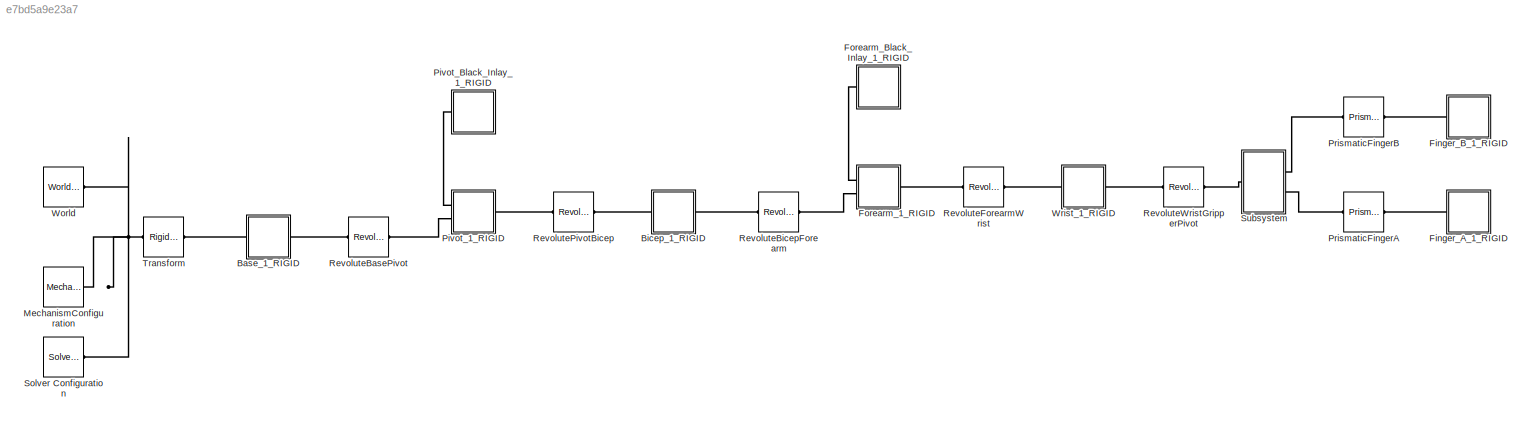
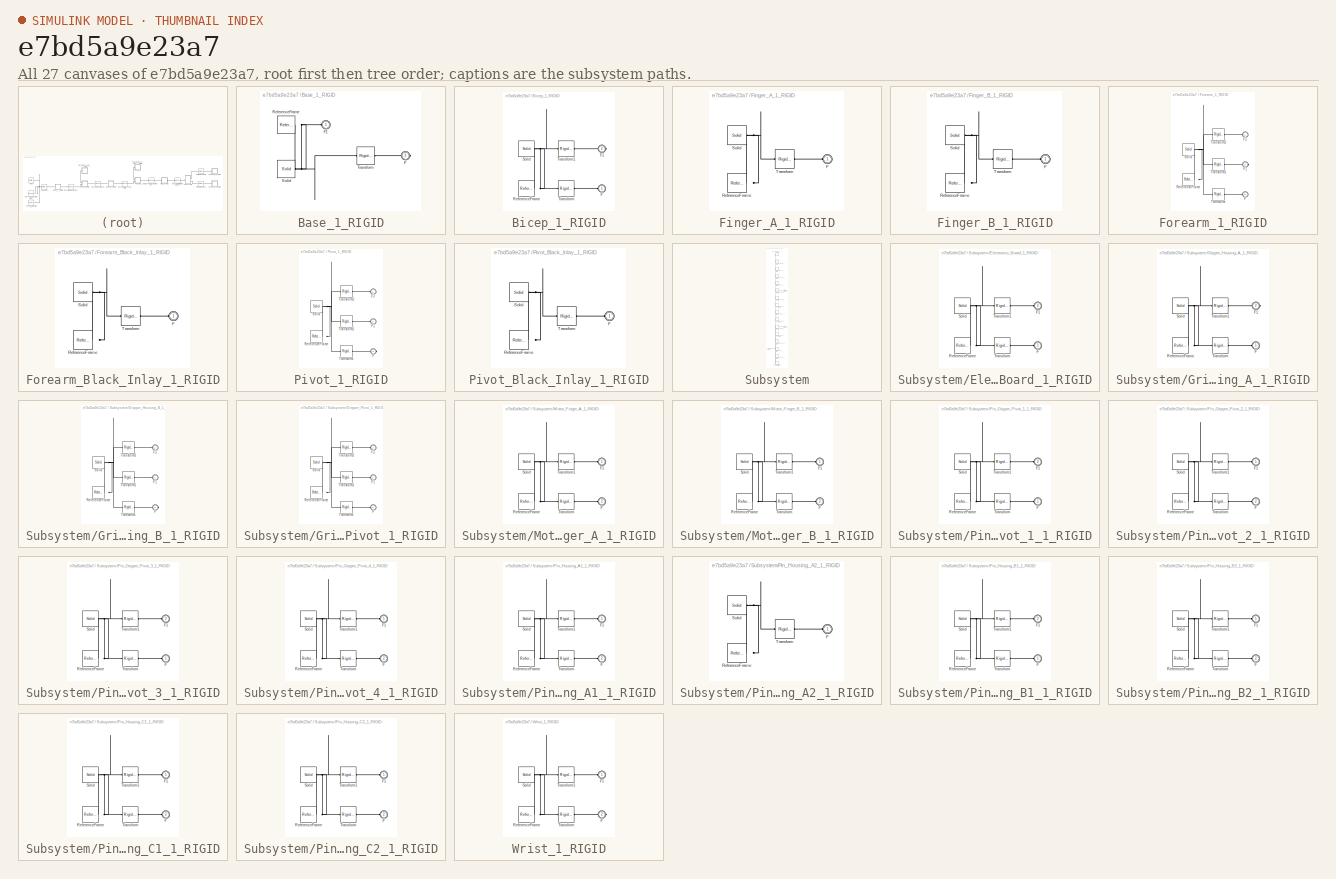
[diagram: thumbnail index - all 27 canvases of the model, root first then tree order]
MODEL slx_e7bd5a9e23a7
KIND model
CONFIG AbsTol = auto
CONFIG EnableMultiTasking = off
CONFIG FixedStep = auto
CONFIG MaxStep = 1e-2
CONFIG MinStep = auto
CONFIG RelTol = 1e-3
CONFIG SampleTimeConstraint = Unconstrained
CONFIG Solver = VariableStepAuto
CONFIG SolverName = VariableStepAuto
CONFIG StartTime = 0.0
CONFIG StopTime = 40
WORKSPACE source: external: MATLAB File  (data not in archive)
BLOCK [SubSystem] Base_1_RIGID
  Ports = [0, 0, 0, 0, 0, 1, 1]
  RequestExecContextInheritance = off
  Variant = off
BLOCK [PMIOPort] Base_1_RIGID/F
  Port = 2
  Side = Right
BLOCK [PMIOPort] Base_1_RIGID/F1
  Port = 1
  Side = Left
BLOCK [Reference] Base_1_RIGID/ReferenceFrame  REF=sm_lib/Frames and
Transforms/Reference
Frame
  Ports = [0, 0, 0, 0, 0, 0, 1]
  SourceBlock = sm_lib/Frames and\nTransforms/Reference\nFrame
  SourceProductBaseCode = MS
  SourceProductName = Simscape Multibody
  SourceType = Reference\nFrame
BLOCK [Reference] Base_1_RIGID/Solid  REF=sm_lib/Body Elements/Solid
  Ports = [0, 0, 0, 0, 0, 0, 1]
  SourceBlock = sm_lib/Body Elements/Solid
  SourceProductBaseCode = MS
  SourceProductName = Simscape Multibody
  SourceType = Solid
BLOCK [Reference] Base_1_RIGID/Transform  REF=sm_lib/Frames and
Transforms/Rigid
Transform
  Ports = [0, 0, 0, 0, 0, 1, 1]
  SourceBlock = sm_lib/Frames and\nTransforms/Rigid\nTransform
  SourceProductBaseCode = MS
  SourceProductName = Simscape Multibody
  SourceType = Rigid\nTransform
BLOCK [SubSystem] Bicep_1_RIGID
  Ports = [0, 0, 0, 0, 0, 1, 1]
  RequestExecContextInheritance = off
  Variant = off
BLOCK [PMIOPort] Bicep_1_RIGID/F
  Port = 1
  Side = Left
BLOCK [PMIOPort] Bicep_1_RIGID/F1
  Port = 2
  Side = Right
BLOCK [Reference] Bicep_1_RIGID/ReferenceFrame  REF=sm_lib/Frames and
Transforms/Reference
Frame
  Ports = [0, 0, 0, 0, 0, 0, 1]
  SourceBlock = sm_lib/Frames and\nTransforms/Reference\nFrame
  SourceProductBaseCode = MS
  SourceProductName = Simscape Multibody
  SourceType = Reference\nFrame
BLOCK [Reference] Bicep_1_RIGID/Solid  REF=sm_lib/Body Elements/Solid
  Ports = [0, 0, 0, 0, 0, 0, 1]
  SourceBlock = sm_lib/Body Elements/Solid
  SourceProductBaseCode = MS
  SourceProductName = Simscape Multibody
  SourceType = Solid
BLOCK [Reference] Bicep_1_RIGID/Transform  REF=sm_lib/Frames and
Transforms/Rigid
Transform
  Ports = [0, 0, 0, 0, 0, 1, 1]
  SourceBlock = sm_lib/Frames and\nTransforms/Rigid\nTransform
  SourceProductBaseCode = MS
  SourceProductName = Simscape Multibody
  SourceType = Rigid\nTransform
BLOCK [Reference] Bicep_1_RIGID/Transform1  REF=sm_lib/Frames and
Transforms/Rigid
Transform
  Ports = [0, 0, 0, 0, 0, 1, 1]
  SourceBlock = sm_lib/Frames and\nTransforms/Rigid\nTransform
  SourceProductBaseCode = MS
  SourceProductName = Simscape Multibody
  SourceType = Rigid\nTransform
BLOCK [SubSystem] Finger_A_1_RIGID
  Ports = [0, 0, 0, 0, 0, 1]
  RequestExecContextInheritance = off
  Variant = off
BLOCK [PMIOPort] Finger_A_1_RIGID/F
  Port = 1
  Side = Left
BLOCK [Reference] Finger_A_1_RIGID/ReferenceFrame  REF=sm_lib/Frames and
Transforms/Reference
Frame
  Ports = [0, 0, 0, 0, 0, 0, 1]
  SourceBlock = sm_lib/Frames and\nTransforms/Reference\nFrame
  SourceProductBaseCode = MS
  SourceProductName = Simscape Multibody
  SourceType = Reference\nFrame
BLOCK [Reference] Finger_A_1_RIGID/Solid  REF=sm_lib/Body Elements/Solid
  Ports = [0, 0, 0, 0, 0, 0, 1]
  SourceBlock = sm_lib/Body Elements/Solid
  SourceProductBaseCode = MS
  SourceProductName = Simscape Multibody
  SourceType = Solid
BLOCK [Reference] Finger_A_1_RIGID/Transform  REF=sm_lib/Frames and
Transforms/Rigid
Transform
  Ports = [0, 0, 0, 0, 0, 1, 1]
  SourceBlock = sm_lib/Frames and\nTransforms/Rigid\nTransform
  SourceProductBaseCode = MS
  SourceProductName = Simscape Multibody
  SourceType = Rigid\nTransform
BLOCK [SubSystem] Finger_B_1_RIGID
  Ports = [0, 0, 0, 0, 0, 1]
  RequestExecContextInheritance = off
  Variant = off
BLOCK [PMIOPort] Finger_B_1_RIGID/F
  Port = 1
  Side = Left
BLOCK [Reference] Finger_B_1_RIGID/ReferenceFrame  REF=sm_lib/Frames and
Transforms/Reference
Frame
  Ports = [0, 0, 0, 0, 0, 0, 1]
  SourceBlock = sm_lib/Frames and\nTransforms/Reference\nFrame
  SourceProductBaseCode = MS
  SourceProductName = Simscape Multibody
  SourceType = Reference\nFrame
BLOCK [Reference] Finger_B_1_RIGID/Solid  REF=sm_lib/Body Elements/Solid
  Ports = [0, 0, 0, 0, 0, 0, 1]
  SourceBlock = sm_lib/Body Elements/Solid
  SourceProductBaseCode = MS
  SourceProductName = Simscape Multibody
  SourceType = Solid
BLOCK [Reference] Finger_B_1_RIGID/Transform  REF=sm_lib/Frames and
Transforms/Rigid
Transform
  Ports = [0, 0, 0, 0, 0, 1, 1]
  SourceBlock = sm_lib/Frames and\nTransforms/Rigid\nTransform
  SourceProductBaseCode = MS
  SourceProductName = Simscape Multibody
  SourceType = Rigid\nTransform
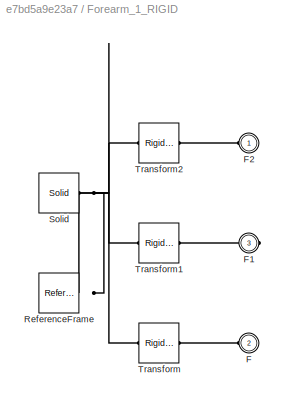
BLOCK [SubSystem] Forearm_1_RIGID
  Ports = [0, 0, 0, 0, 0, 2, 1]
  RequestExecContextInheritance = off
  Variant = off
BLOCK [PMIOPort] Forearm_1_RIGID/F
  Port = 2
  Side = Left
BLOCK [PMIOPort] Forearm_1_RIGID/F1
  Port = 3
  Side = Right
BLOCK [PMIOPort] Forearm_1_RIGID/F2
  Port = 1
  Side = Left
BLOCK [Reference] Forearm_1_RIGID/ReferenceFrame  REF=sm_lib/Frames and
Transforms/Reference
Frame
  Ports = [0, 0, 0, 0, 0, 0, 1]
  SourceBlock = sm_lib/Frames and\nTransforms/Reference\nFrame
  SourceProductBaseCode = MS
  SourceProductName = Simscape Multibody
  SourceType = Reference\nFrame
BLOCK [Reference] Forearm_1_RIGID/Solid  REF=sm_lib/Body Elements/Solid
  Ports = [0, 0, 0, 0, 0, 0, 1]
  SourceBlock = sm_lib/Body Elements/Solid
  SourceProductBaseCode = MS
  SourceProductName = Simscape Multibody
  SourceType = Solid
BLOCK [Reference] Forearm_1_RIGID/Transform  REF=sm_lib/Frames and
Transforms/Rigid
Transform
  Ports = [0, 0, 0, 0, 0, 1, 1]
  SourceBlock = sm_lib/Frames and\nTransforms/Rigid\nTransform
  SourceProductBaseCode = MS
  SourceProductName = Simscape Multibody
  SourceType = Rigid\nTransform
BLOCK [Reference] Forearm_1_RIGID/Transform1  REF=sm_lib/Frames and
Transforms/Rigid
Transform
  Ports = [0, 0, 0, 0, 0, 1, 1]
  SourceBlock = sm_lib/Frames and\nTransforms/Rigid\nTransform
  SourceProductBaseCode = MS
  SourceProductName = Simscape Multibody
  SourceType = Rigid\nTransform
BLOCK [Reference] Forearm_1_RIGID/Transform2  REF=sm_lib/Frames and
Transforms/Rigid
Transform
  Ports = [0, 0, 0, 0, 0, 1, 1]
  SourceBlock = sm_lib/Frames and\nTransforms/Rigid\nTransform
  SourceProductBaseCode = MS
  SourceProductName = Simscape Multibody
  SourceType = Rigid\nTransform
BLOCK [SubSystem] Forearm_Black_Inlay_1_RIGID
  Ports = [0, 0, 0, 0, 0, 1]
  RequestExecContextInheritance = off
  Variant = off
BLOCK [PMIOPort] Forearm_Black_Inlay_1_RIGID/F
  Port = 1
  Side = Left
BLOCK [Reference] Forearm_Black_Inlay_1_RIGID/ReferenceFrame  REF=sm_lib/Frames and
Transforms/Reference
Frame
  Ports = [0, 0, 0, 0, 0, 0, 1]
  SourceBlock = sm_lib/Frames and\nTransforms/Reference\nFrame
  SourceProductBaseCode = MS
  SourceProductName = Simscape Multibody
  SourceType = Reference\nFrame
BLOCK [Reference] Forearm_Black_Inlay_1_RIGID/Solid  REF=sm_lib/Body Elements/Solid
  Ports = [0, 0, 0, 0, 0, 0, 1]
  SourceBlock = sm_lib/Body Elements/Solid
  SourceProductBaseCode = MS
  SourceProductName = Simscape Multibody
  SourceType = Solid
BLOCK [Reference] Forearm_Black_Inlay_1_RIGID/Transform  REF=sm_lib/Frames and
Transforms/Rigid
Transform
  Ports = [0, 0, 0, 0, 0, 1, 1]
  SourceBlock = sm_lib/Frames and\nTransforms/Rigid\nTransform
  SourceProductBaseCode = MS
  SourceProductName = Simscape Multibody
  SourceType = Rigid\nTransform
BLOCK [Reference] MechanismConfiguration  REF=sm_lib/Utilities/Mechanism
Configuration
  Ports = [0, 0, 0, 0, 0, 0, 1]
  SourceBlock = sm_lib/Utilities/Mechanism\nConfiguration
  SourceProductBaseCode = MS
  SourceProductName = Simscape Multibody
  SourceType = Mechanism\nConfiguration
BLOCK [SubSystem] Pivot_1_RIGID
  Ports = [0, 0, 0, 0, 0, 2, 1]
  RequestExecContextInheritance = off
  Variant = off
BLOCK [PMIOPort] Pivot_1_RIGID/F
  Port = 3
  Side = Right
BLOCK [PMIOPort] Pivot_1_RIGID/F1
  Port = 2
  Side = Left
BLOCK [PMIOPort] Pivot_1_RIGID/F2
  Port = 1
  Side = Left
BLOCK [Reference] Pivot_1_RIGID/ReferenceFrame  REF=sm_lib/Frames and
Transforms/Reference
Frame
  Ports = [0, 0, 0, 0, 0, 0, 1]
  SourceBlock = sm_lib/Frames and\nTransforms/Reference\nFrame
  SourceProductBaseCode = MS
  SourceProductName = Simscape Multibody
  SourceType = Reference\nFrame
BLOCK [Reference] Pivot_1_RIGID/Solid  REF=sm_lib/Body Elements/Solid
  Ports = [0, 0, 0, 0, 0, 0, 1]
  SourceBlock = sm_lib/Body Elements/Solid
  SourceProductBaseCode = MS
  SourceProductName = Simscape Multibody
  SourceType = Solid
BLOCK [Reference] Pivot_1_RIGID/Transform  REF=sm_lib/Frames and
Transforms/Rigid
Transform
  Ports = [0, 0, 0, 0, 0, 1, 1]
  SourceBlock = sm_lib/Frames and\nTransforms/Rigid\nTransform
  SourceProductBaseCode = MS
  SourceProductName = Simscape Multibody
  SourceType = Rigid\nTransform
BLOCK [Reference] Pivot_1_RIGID/Transform1  REF=sm_lib/Frames and
Transforms/Rigid
Transform
  Ports = [0, 0, 0, 0, 0, 1, 1]
  SourceBlock = sm_lib/Frames and\nTransforms/Rigid\nTransform
  SourceProductBaseCode = MS
  SourceProductName = Simscape Multibody
  SourceType = Rigid\nTransform
BLOCK [Reference] Pivot_1_RIGID/Transform2  REF=sm_lib/Frames and
Transforms/Rigid
Transform
  Ports = [0, 0, 0, 0, 0, 1, 1]
  SourceBlock = sm_lib/Frames and\nTransforms/Rigid\nTransform
  SourceProductBaseCode = MS
  SourceProductName = Simscape Multibody
  SourceType = Rigid\nTransform
BLOCK [SubSystem] Pivot_Black_Inlay_1_RIGID
  Ports = [0, 0, 0, 0, 0, 1]
  RequestExecContextInheritance = off
  Variant = off
BLOCK [PMIOPort] Pivot_Black_Inlay_1_RIGID/F
  Port = 1
  Side = Left
BLOCK [Reference] Pivot_Black_Inlay_1_RIGID/ReferenceFrame  REF=sm_lib/Frames and
Transforms/Reference
Frame
  Ports = [0, 0, 0, 0, 0, 0, 1]
  SourceBlock = sm_lib/Frames and\nTransforms/Reference\nFrame
  SourceProductBaseCode = MS
  SourceProductName = Simscape Multibody
  SourceType = Reference\nFrame
BLOCK [Reference] Pivot_Black_Inlay_1_RIGID/Solid  REF=sm_lib/Body Elements/Solid
  Ports = [0, 0, 0, 0, 0, 0, 1]
  SourceBlock = sm_lib/Body Elements/Solid
  SourceProductBaseCode = MS
  SourceProductName = Simscape Multibody
  SourceType = Solid
BLOCK [Reference] Pivot_Black_Inlay_1_RIGID/Transform  REF=sm_lib/Frames and
Transforms/Rigid
Transform
  Ports = [0, 0, 0, 0, 0, 1, 1]
  SourceBlock = sm_lib/Frames and\nTransforms/Rigid\nTransform
  SourceProductBaseCode = MS
  SourceProductName = Simscape Multibody
  SourceType = Rigid\nTransform
BLOCK [Reference] PrismaticFingerA  REF=sm_lib/Joints/Prismatic
Joint
  Ports = [0, 0, 0, 0, 0, 1, 1]
  SourceBlock = sm_lib/Joints/Prismatic\nJoint
  SourceProductBaseCode = MS
  SourceProductName = Simscape Multibody
  SourceType = Prismatic\nJoint
BLOCK [Reference] PrismaticFingerB  REF=sm_lib/Joints/Prismatic
Joint
  Ports = [0, 0, 0, 0, 0, 1, 1]
  SourceBlock = sm_lib/Joints/Prismatic\nJoint
  SourceProductBaseCode = MS
  SourceProductName = Simscape Multibody
  SourceType = Prismatic\nJoint
BLOCK [Reference] RevoluteBasePivot  REF=sm_lib/Joints/Revolute Joint
  Ports = [0, 0, 0, 0, 0, 1, 1]
  SourceBlock = sm_lib/Joints/Revolute Joint
  SourceProductBaseCode = MS
  SourceProductName = Simscape Multibody
  SourceType = Revolute Joint
BLOCK [Reference] RevoluteBicepForearm  REF=sm_lib/Joints/Revolute Joint
  Ports = [0, 0, 0, 0, 0, 1, 1]
  SourceBlock = sm_lib/Joints/Revolute Joint
  SourceProductBaseCode = MS
  SourceProductName = Simscape Multibody
  SourceType = Revolute Joint
BLOCK [Reference] RevoluteForearmWrist  REF=sm_lib/Joints/Revolute Joint
  Ports = [0, 0, 0, 0, 0, 1, 1]
  SourceBlock = sm_lib/Joints/Revolute Joint
  SourceProductBaseCode = MS
  SourceProductName = Simscape Multibody
  SourceType = Revolute Joint
BLOCK [Reference] RevolutePivotBicep  REF=sm_lib/Joints/Revolute Joint
  Ports = [0, 0, 0, 0, 0, 1, 1]
  SourceBlock = sm_lib/Joints/Revolute Joint
  SourceProductBaseCode = MS
  SourceProductName = Simscape Multibody
  SourceType = Revolute Joint
BLOCK [Reference] RevoluteWristGripperPivot  REF=sm_lib/Joints/Revolute Joint
  Ports = [0, 0, 0, 0, 0, 1, 1]
  SourceBlock = sm_lib/Joints/Revolute Joint
  SourceProductBaseCode = MS
  SourceProductName = Simscape Multibody
  SourceType = Revolute Joint
BLOCK [Reference] Solver Configuration  REF=nesl_utility/Solver
Configuration
  Ports = [0, 0, 0, 0, 0, 0, 1]
  SourceBlock = nesl_utility/Solver\nConfiguration
  SourceProductBaseCode = SS
  SourceProductName = Simscape
  SourceType = Solver\nConfiguration
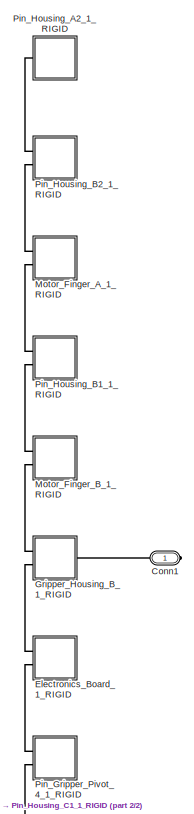
[diagram: Subsystem - part 1/2, top center region]
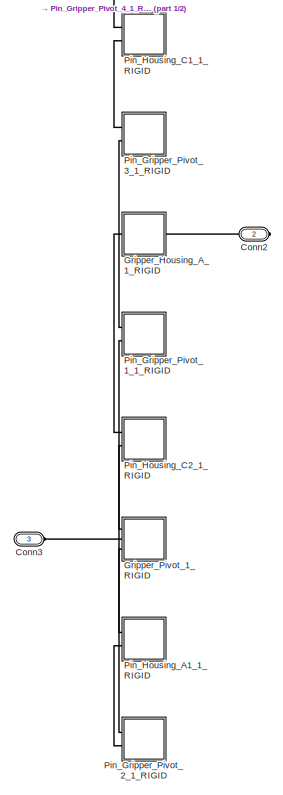
[diagram: Subsystem - part 2/2, full width, bottom band]
BLOCK [SubSystem] Subsystem
  Ports = [0, 0, 0, 0, 0, 1, 2]
  RequestExecContextInheritance = off
  Variant = off
BLOCK [PMIOPort] Subsystem/Conn1
  Port = 1
  Side = Right
BLOCK [PMIOPort] Subsystem/Conn2
  Port = 2
  Side = Right
BLOCK [PMIOPort] Subsystem/Conn3
  Port = 3
  Side = Left
BLOCK [SubSystem] Subsystem/Electronics_Board_1_RIGID
  Ports = [0, 0, 0, 0, 0, 2]
  RequestExecContextInheritance = off
  Variant = off
BLOCK [PMIOPort] Subsystem/Electronics_Board_1_RIGID/F
  Port = 1
  Side = Left
BLOCK [PMIOPort] Subsystem/Electronics_Board_1_RIGID/F1
  Port = 2
  Side = Left
BLOCK [Reference] Subsystem/Electronics_Board_1_RIGID/ReferenceFrame  REF=sm_lib/Frames and
Transforms/Reference
Frame
  Ports = [0, 0, 0, 0, 0, 0, 1]
  SourceBlock = sm_lib/Frames and\nTransforms/Reference\nFrame
  SourceProductBaseCode = MS
  SourceProductName = Simscape Multibody
  SourceType = Reference\nFrame
BLOCK [Reference] Subsystem/Electronics_Board_1_RIGID/Solid  REF=sm_lib/Body Elements/Solid
  Ports = [0, 0, 0, 0, 0, 0, 1]
  SourceBlock = sm_lib/Body Elements/Solid
  SourceProductBaseCode = MS
  SourceProductName = Simscape Multibody
  SourceType = Solid
BLOCK [Reference] Subsystem/Electronics_Board_1_RIGID/Transform  REF=sm_lib/Frames and
Transforms/Rigid
Transform
  Ports = [0, 0, 0, 0, 0, 1, 1]
  SourceBlock = sm_lib/Frames and\nTransforms/Rigid\nTransform
  SourceProductBaseCode = MS
  SourceProductName = Simscape Multibody
  SourceType = Rigid\nTransform
BLOCK [Reference] Subsystem/Electronics_Board_1_RIGID/Transform1  REF=sm_lib/Frames and
Transforms/Rigid
Transform
  Ports = [0, 0, 0, 0, 0, 1, 1]
  SourceBlock = sm_lib/Frames and\nTransforms/Rigid\nTransform
  SourceProductBaseCode = MS
  SourceProductName = Simscape Multibody
  SourceType = Rigid\nTransform
BLOCK [SubSystem] Subsystem/Gripper_Housing_A_1_RIGID
  Ports = [0, 0, 0, 0, 0, 1, 1]
  RequestExecContextInheritance = off
  Variant = off
BLOCK [PMIOPort] Subsystem/Gripper_Housing_A_1_RIGID/F
  Port = 1
  Side = Left
BLOCK [PMIOPort] Subsystem/Gripper_Housing_A_1_RIGID/F1
  Port = 2
  Side = Right
BLOCK [Reference] Subsystem/Gripper_Housing_A_1_RIGID/ReferenceFrame  REF=sm_lib/Frames and
Transforms/Reference
Frame
  Ports = [0, 0, 0, 0, 0, 0, 1]
  SourceBlock = sm_lib/Frames and\nTransforms/Reference\nFrame
  SourceProductBaseCode = MS
  SourceProductName = Simscape Multibody
  SourceType = Reference\nFrame
BLOCK [Reference] Subsystem/Gripper_Housing_A_1_RIGID/Solid  REF=sm_lib/Body Elements/Solid
  Ports = [0, 0, 0, 0, 0, 0, 1]
  SourceBlock = sm_lib/Body Elements/Solid
  SourceProductBaseCode = MS
  SourceProductName = Simscape Multibody
  SourceType = Solid
BLOCK [Reference] Subsystem/Gripper_Housing_A_1_RIGID/Transform  REF=sm_lib/Frames and
Transforms/Rigid
Transform
  Ports = [0, 0, 0, 0, 0, 1, 1]
  SourceBlock = sm_lib/Frames and\nTransforms/Rigid\nTransform
  SourceProductBaseCode = MS
  SourceProductName = Simscape Multibody
  SourceType = Rigid\nTransform
BLOCK [Reference] Subsystem/Gripper_Housing_A_1_RIGID/Transform1  REF=sm_lib/Frames and
Transforms/Rigid
Transform
  Ports = [0, 0, 0, 0, 0, 1, 1]
  SourceBlock = sm_lib/Frames and\nTransforms/Rigid\nTransform
  SourceProductBaseCode = MS
  SourceProductName = Simscape Multibody
  SourceType = Rigid\nTransform
BLOCK [SubSystem] Subsystem/Gripper_Housing_B_1_RIGID
  Ports = [0, 0, 0, 0, 0, 2, 1]
  RequestExecContextInheritance = off
  Variant = off
BLOCK [PMIOPort] Subsystem/Gripper_Housing_B_1_RIGID/F
  Port = 3
  Side = Right
BLOCK [PMIOPort] Subsystem/Gripper_Housing_B_1_RIGID/F1
  Port = 1
  Side = Left
BLOCK [PMIOPort] Subsystem/Gripper_Housing_B_1_RIGID/F2
  Port = 2
  Side = Left
BLOCK [Reference] Subsystem/Gripper_Housing_B_1_RIGID/ReferenceFrame  REF=sm_lib/Frames and
Transforms/Reference
Frame
  Ports = [0, 0, 0, 0, 0, 0, 1]
  SourceBlock = sm_lib/Frames and\nTransforms/Reference\nFrame
  SourceProductBaseCode = MS
  SourceProductName = Simscape Multibody
  SourceType = Reference\nFrame
BLOCK [Reference] Subsystem/Gripper_Housing_B_1_RIGID/Solid  REF=sm_lib/Body Elements/Solid
  Ports = [0, 0, 0, 0, 0, 0, 1]
  SourceBlock = sm_lib/Body Elements/Solid
  SourceProductBaseCode = MS
  SourceProductName = Simscape Multibody
  SourceType = Solid
BLOCK [Reference] Subsystem/Gripper_Housing_B_1_RIGID/Transform  REF=sm_lib/Frames and
Transforms/Rigid
Transform
  Ports = [0, 0, 0, 0, 0, 1, 1]
  SourceBlock = sm_lib/Frames and\nTransforms/Rigid\nTransform
  SourceProductBaseCode = MS
  SourceProductName = Simscape Multibody
  SourceType = Rigid\nTransform
BLOCK [Reference] Subsystem/Gripper_Housing_B_1_RIGID/Transform1  REF=sm_lib/Frames and
Transforms/Rigid
Transform
  Ports = [0, 0, 0, 0, 0, 1, 1]
  SourceBlock = sm_lib/Frames and\nTransforms/Rigid\nTransform
  SourceProductBaseCode = MS
  SourceProductName = Simscape Multibody
  SourceType = Rigid\nTransform
BLOCK [Reference] Subsystem/Gripper_Housing_B_1_RIGID/Transform2  REF=sm_lib/Frames and
Transforms/Rigid
Transform
  Ports = [0, 0, 0, 0, 0, 1, 1]
  SourceBlock = sm_lib/Frames and\nTransforms/Rigid\nTransform
  SourceProductBaseCode = MS
  SourceProductName = Simscape Multibody
  SourceType = Rigid\nTransform
BLOCK [SubSystem] Subsystem/Gripper_Pivot_1_RIGID
  Ports = [0, 0, 0, 0, 0, 3]
  RequestExecContextInheritance = off
  Variant = off
BLOCK [PMIOPort] Subsystem/Gripper_Pivot_1_RIGID/F
  Port = 3
  Side = Left
BLOCK [PMIOPort] Subsystem/Gripper_Pivot_1_RIGID/F1
  Port = 2
  Side = Left
BLOCK [PMIOPort] Subsystem/Gripper_Pivot_1_RIGID/F2
  Port = 1
  Side = Left
BLOCK [Reference] Subsystem/Gripper_Pivot_1_RIGID/ReferenceFrame  REF=sm_lib/Frames and
Transforms/Reference
Frame
  Ports = [0, 0, 0, 0, 0, 0, 1]
  SourceBlock = sm_lib/Frames and\nTransforms/Reference\nFrame
  SourceProductBaseCode = MS
  SourceProductName = Simscape Multibody
  SourceType = Reference\nFrame
BLOCK [Reference] Subsystem/Gripper_Pivot_1_RIGID/Solid  REF=sm_lib/Body Elements/Solid
  Ports = [0, 0, 0, 0, 0, 0, 1]
  SourceBlock = sm_lib/Body Elements/Solid
  SourceProductBaseCode = MS
  SourceProductName = Simscape Multibody
  SourceType = Solid
BLOCK [Reference] Subsystem/Gripper_Pivot_1_RIGID/Transform  REF=sm_lib/Frames and
Transforms/Rigid
Transform
  Ports = [0, 0, 0, 0, 0, 1, 1]
  SourceBlock = sm_lib/Frames and\nTransforms/Rigid\nTransform
  SourceProductBaseCode = MS
  SourceProductName = Simscape Multibody
  SourceType = Rigid\nTransform
BLOCK [Reference] Subsystem/Gripper_Pivot_1_RIGID/Transform1  REF=sm_lib/Frames and
Transforms/Rigid
Transform
  Ports = [0, 0, 0, 0, 0, 1, 1]
  SourceBlock = sm_lib/Frames and\nTransforms/Rigid\nTransform
  SourceProductBaseCode = MS
  SourceProductName = Simscape Multibody
  SourceType = Rigid\nTransform
BLOCK [Reference] Subsystem/Gripper_Pivot_1_RIGID/Transform2  REF=sm_lib/Frames and
Transforms/Rigid
Transform
  Ports = [0, 0, 0, 0, 0, 1, 1]
  SourceBlock = sm_lib/Frames and\nTransforms/Rigid\nTransform
  SourceProductBaseCode = MS
  SourceProductName = Simscape Multibody
  SourceType = Rigid\nTransform
BLOCK [SubSystem] Subsystem/Motor_Finger_A_1_RIGID
  Ports = [0, 0, 0, 0, 0, 2]
  RequestExecContextInheritance = off
  Variant = off
BLOCK [PMIOPort] Subsystem/Motor_Finger_A_1_RIGID/F
  Port = 2
  Side = Left
BLOCK [PMIOPort] Subsystem/Motor_Finger_A_1_RIGID/F1
  Port = 1
  Side = Left
BLOCK [Reference] Subsystem/Motor_Finger_A_1_RIGID/ReferenceFrame  REF=sm_lib/Frames and
Transforms/Reference
Frame
  Ports = [0, 0, 0, 0, 0, 0, 1]
  SourceBlock = sm_lib/Frames and\nTransforms/Reference\nFrame
  SourceProductBaseCode = MS
  SourceProductName = Simscape Multibody
  SourceType = Reference\nFrame
BLOCK [Reference] Subsystem/Motor_Finger_A_1_RIGID/Solid  REF=sm_lib/Body Elements/Solid
  Ports = [0, 0, 0, 0, 0, 0, 1]
  SourceBlock = sm_lib/Body Elements/Solid
  SourceProductBaseCode = MS
  SourceProductName = Simscape Multibody
  SourceType = Solid
BLOCK [Reference] Subsystem/Motor_Finger_A_1_RIGID/Transform  REF=sm_lib/Frames and
Transforms/Rigid
Transform
  Ports = [0, 0, 0, 0, 0, 1, 1]
  SourceBlock = sm_lib/Frames and\nTransforms/Rigid\nTransform
  SourceProductBaseCode = MS
  SourceProductName = Simscape Multibody
  SourceType = Rigid\nTransform
BLOCK [Reference] Subsystem/Motor_Finger_A_1_RIGID/Transform1  REF=sm_lib/Frames and
Transforms/Rigid
Transform
  Ports = [0, 0, 0, 0, 0, 1, 1]
  SourceBlock = sm_lib/Frames and\nTransforms/Rigid\nTransform
  SourceProductBaseCode = MS
  SourceProductName = Simscape Multibody
  SourceType = Rigid\nTransform
BLOCK [SubSystem] Subsystem/Motor_Finger_B_1_RIGID
  Ports = [0, 0, 0, 0, 0, 2]
  RequestExecContextInheritance = off
  Variant = off
BLOCK [PMIOPort] Subsystem/Motor_Finger_B_1_RIGID/F
  Port = 2
  Side = Left
BLOCK [PMIOPort] Subsystem/Motor_Finger_B_1_RIGID/F1
  Port = 1
  Side = Left
BLOCK [Reference] Subsystem/Motor_Finger_B_1_RIGID/ReferenceFrame  REF=sm_lib/Frames and
Transforms/Reference
Frame
  Ports = [0, 0, 0, 0, 0, 0, 1]
  SourceBlock = sm_lib/Frames and\nTransforms/Reference\nFrame
  SourceProductBaseCode = MS
  SourceProductName = Simscape Multibody
  SourceType = Reference\nFrame
BLOCK [Reference] Subsystem/Motor_Finger_B_1_RIGID/Solid  REF=sm_lib/Body Elements/Solid
  Ports = [0, 0, 0, 0, 0, 0, 1]
  SourceBlock = sm_lib/Body Elements/Solid
  SourceProductBaseCode = MS
  SourceProductName = Simscape Multibody
  SourceType = Solid
BLOCK [Reference] Subsystem/Motor_Finger_B_1_RIGID/Transform  REF=sm_lib/Frames and
Transforms/Rigid
Transform
  Ports = [0, 0, 0, 0, 0, 1, 1]
  SourceBlock = sm_lib/Frames and\nTransforms/Rigid\nTransform
  SourceProductBaseCode = MS
  SourceProductName = Simscape Multibody
  SourceType = Rigid\nTransform
BLOCK [Reference] Subsystem/Motor_Finger_B_1_RIGID/Transform1  REF=sm_lib/Frames and
Transforms/Rigid
Transform
  Ports = [0, 0, 0, 0, 0, 1, 1]
  SourceBlock = sm_lib/Frames and\nTransforms/Rigid\nTransform
  SourceProductBaseCode = MS
  SourceProductName = Simscape Multibody
  SourceType = Rigid\nTransform
BLOCK [SubSystem] Subsystem/Pin_Gripper_Pivot_1_1_RIGID
  Ports = [0, 0, 0, 0, 0, 2]
  RequestExecContextInheritance = off
  Variant = off
BLOCK [PMIOPort] Subsystem/Pin_Gripper_Pivot_1_1_RIGID/F
  Port = 1
  Side = Left
BLOCK [PMIOPort] Subsystem/Pin_Gripper_Pivot_1_1_RIGID/F1
  Port = 2
  Side = Left
BLOCK [Reference] Subsystem/Pin_Gripper_Pivot_1_1_RIGID/ReferenceFrame  REF=sm_lib/Frames and
Transforms/Reference
Frame
  Ports = [0, 0, 0, 0, 0, 0, 1]
  SourceBlock = sm_lib/Frames and\nTransforms/Reference\nFrame
  SourceProductBaseCode = MS
  SourceProductName = Simscape Multibody
  SourceType = Reference\nFrame
BLOCK [Reference] Subsystem/Pin_Gripper_Pivot_1_1_RIGID/Solid  REF=sm_lib/Body Elements/Solid
  Ports = [0, 0, 0, 0, 0, 0, 1]
  SourceBlock = sm_lib/Body Elements/Solid
  SourceProductBaseCode = MS
  SourceProductName = Simscape Multibody
  SourceType = Solid
BLOCK [Reference] Subsystem/Pin_Gripper_Pivot_1_1_RIGID/Transform  REF=sm_lib/Frames and
Transforms/Rigid
Transform
  Ports = [0, 0, 0, 0, 0, 1, 1]
  SourceBlock = sm_lib/Frames and\nTransforms/Rigid\nTransform
  SourceProductBaseCode = MS
  SourceProductName = Simscape Multibody
  SourceType = Rigid\nTransform
BLOCK [Reference] Subsystem/Pin_Gripper_Pivot_1_1_RIGID/Transform1  REF=sm_lib/Frames and
Transforms/Rigid
Transform
  Ports = [0, 0, 0, 0, 0, 1, 1]
  SourceBlock = sm_lib/Frames and\nTransforms/Rigid\nTransform
  SourceProductBaseCode = MS
  SourceProductName = Simscape Multibody
  SourceType = Rigid\nTransform
BLOCK [SubSystem] Subsystem/Pin_Gripper_Pivot_2_1_RIGID
  Ports = [0, 0, 0, 0, 0, 2]
  RequestExecContextInheritance = off
  Variant = off
BLOCK [PMIOPort] Subsystem/Pin_Gripper_Pivot_2_1_RIGID/F
  Port = 2
  Side = Left
BLOCK [PMIOPort] Subsystem/Pin_Gripper_Pivot_2_1_RIGID/F1
  Port = 1
  Side = Left
BLOCK [Reference] Subsystem/Pin_Gripper_Pivot_2_1_RIGID/ReferenceFrame  REF=sm_lib/Frames and
Transforms/Reference
Frame
  Ports = [0, 0, 0, 0, 0, 0, 1]
  SourceBlock = sm_lib/Frames and\nTransforms/Reference\nFrame
  SourceProductBaseCode = MS
  SourceProductName = Simscape Multibody
  SourceType = Reference\nFrame
BLOCK [Reference] Subsystem/Pin_Gripper_Pivot_2_1_RIGID/Solid  REF=sm_lib/Body Elements/Solid
  Ports = [0, 0, 0, 0, 0, 0, 1]
  SourceBlock = sm_lib/Body Elements/Solid
  SourceProductBaseCode = MS
  SourceProductName = Simscape Multibody
  SourceType = Solid
BLOCK [Reference] Subsystem/Pin_Gripper_Pivot_2_1_RIGID/Transform  REF=sm_lib/Frames and
Transforms/Rigid
Transform
  Ports = [0, 0, 0, 0, 0, 1, 1]
  SourceBlock = sm_lib/Frames and\nTransforms/Rigid\nTransform
  SourceProductBaseCode = MS
  SourceProductName = Simscape Multibody
  SourceType = Rigid\nTransform
BLOCK [Reference] Subsystem/Pin_Gripper_Pivot_2_1_RIGID/Transform1  REF=sm_lib/Frames and
Transforms/Rigid
Transform
  Ports = [0, 0, 0, 0, 0, 1, 1]
  SourceBlock = sm_lib/Frames and\nTransforms/Rigid\nTransform
  SourceProductBaseCode = MS
  SourceProductName = Simscape Multibody
  SourceType = Rigid\nTransform
BLOCK [SubSystem] Subsystem/Pin_Gripper_Pivot_3_1_RIGID
  Ports = [0, 0, 0, 0, 0, 2]
  RequestExecContextInheritance = off
  Variant = off
BLOCK [PMIOPort] Subsystem/Pin_Gripper_Pivot_3_1_RIGID/F
  Port = 1
  Side = Left
BLOCK [PMIOPort] Subsystem/Pin_Gripper_Pivot_3_1_RIGID/F1
  Port = 2
  Side = Left
BLOCK [Reference] Subsystem/Pin_Gripper_Pivot_3_1_RIGID/ReferenceFrame  REF=sm_lib/Frames and
Transforms/Reference
Frame
  Ports = [0, 0, 0, 0, 0, 0, 1]
  SourceBlock = sm_lib/Frames and\nTransforms/Reference\nFrame
  SourceProductBaseCode = MS
  SourceProductName = Simscape Multibody
  SourceType = Reference\nFrame
BLOCK [Reference] Subsystem/Pin_Gripper_Pivot_3_1_RIGID/Solid  REF=sm_lib/Body Elements/Solid
  Ports = [0, 0, 0, 0, 0, 0, 1]
  SourceBlock = sm_lib/Body Elements/Solid
  SourceProductBaseCode = MS
  SourceProductName = Simscape Multibody
  SourceType = Solid
BLOCK [Reference] Subsystem/Pin_Gripper_Pivot_3_1_RIGID/Transform  REF=sm_lib/Frames and
Transforms/Rigid
Transform
  Ports = [0, 0, 0, 0, 0, 1, 1]
  SourceBlock = sm_lib/Frames and\nTransforms/Rigid\nTransform
  SourceProductBaseCode = MS
  SourceProductName = Simscape Multibody
  SourceType = Rigid\nTransform
BLOCK [Reference] Subsystem/Pin_Gripper_Pivot_3_1_RIGID/Transform1  REF=sm_lib/Frames and
Transforms/Rigid
Transform
  Ports = [0, 0, 0, 0, 0, 1, 1]
  SourceBlock = sm_lib/Frames and\nTransforms/Rigid\nTransform
  SourceProductBaseCode = MS
  SourceProductName = Simscape Multibody
  SourceType = Rigid\nTransform
BLOCK [SubSystem] Subsystem/Pin_Gripper_Pivot_4_1_RIGID
  Ports = [0, 0, 0, 0, 0, 2]
  RequestExecContextInheritance = off
  Variant = off
BLOCK [PMIOPort] Subsystem/Pin_Gripper_Pivot_4_1_RIGID/F
  Port = 2
  Side = Left
BLOCK [PMIOPort] Subsystem/Pin_Gripper_Pivot_4_1_RIGID/F1
  Port = 1
  Side = Left
BLOCK [Reference] Subsystem/Pin_Gripper_Pivot_4_1_RIGID/ReferenceFrame  REF=sm_lib/Frames and
Transforms/Reference
Frame
  Ports = [0, 0, 0, 0, 0, 0, 1]
  SourceBlock = sm_lib/Frames and\nTransforms/Reference\nFrame
  SourceProductBaseCode = MS
  SourceProductName = Simscape Multibody
  SourceType = Reference\nFrame
BLOCK [Reference] Subsystem/Pin_Gripper_Pivot_4_1_RIGID/Solid  REF=sm_lib/Body Elements/Solid
  Ports = [0, 0, 0, 0, 0, 0, 1]
  SourceBlock = sm_lib/Body Elements/Solid
  SourceProductBaseCode = MS
  SourceProductName = Simscape Multibody
  SourceType = Solid
BLOCK [Reference] Subsystem/Pin_Gripper_Pivot_4_1_RIGID/Transform  REF=sm_lib/Frames and
Transforms/Rigid
Transform
  Ports = [0, 0, 0, 0, 0, 1, 1]
  SourceBlock = sm_lib/Frames and\nTransforms/Rigid\nTransform
  SourceProductBaseCode = MS
  SourceProductName = Simscape Multibody
  SourceType = Rigid\nTransform
BLOCK [Reference] Subsystem/Pin_Gripper_Pivot_4_1_RIGID/Transform1  REF=sm_lib/Frames and
Transforms/Rigid
Transform
  Ports = [0, 0, 0, 0, 0, 1, 1]
  SourceBlock = sm_lib/Frames and\nTransforms/Rigid\nTransform
  SourceProductBaseCode = MS
  SourceProductName = Simscape Multibody
  SourceType = Rigid\nTransform
BLOCK [SubSystem] Subsystem/Pin_Housing_A1_1_RIGID
  Ports = [0, 0, 0, 0, 0, 2]
  RequestExecContextInheritance = off
  Variant = off
BLOCK [PMIOPort] Subsystem/Pin_Housing_A1_1_RIGID/F
  Port = 2
  Side = Left
BLOCK [PMIOPort] Subsystem/Pin_Housing_A1_1_RIGID/F1
  Port = 1
  Side = Left
BLOCK [Reference] Subsystem/Pin_Housing_A1_1_RIGID/ReferenceFrame  REF=sm_lib/Frames and
Transforms/Reference
Frame
  Ports = [0, 0, 0, 0, 0, 0, 1]
  SourceBlock = sm_lib/Frames and\nTransforms/Reference\nFrame
  SourceProductBaseCode = MS
  SourceProductName = Simscape Multibody
  SourceType = Reference\nFrame
BLOCK [Reference] Subsystem/Pin_Housing_A1_1_RIGID/Solid  REF=sm_lib/Body Elements/Solid
  Ports = [0, 0, 0, 0, 0, 0, 1]
  SourceBlock = sm_lib/Body Elements/Solid
  SourceProductBaseCode = MS
  SourceProductName = Simscape Multibody
  SourceType = Solid
BLOCK [Reference] Subsystem/Pin_Housing_A1_1_RIGID/Transform  REF=sm_lib/Frames and
Transforms/Rigid
Transform
  Ports = [0, 0, 0, 0, 0, 1, 1]
  SourceBlock = sm_lib/Frames and\nTransforms/Rigid\nTransform
  SourceProductBaseCode = MS
  SourceProductName = Simscape Multibody
  SourceType = Rigid\nTransform
BLOCK [Reference] Subsystem/Pin_Housing_A1_1_RIGID/Transform1  REF=sm_lib/Frames and
Transforms/Rigid
Transform
  Ports = [0, 0, 0, 0, 0, 1, 1]
  SourceBlock = sm_lib/Frames and\nTransforms/Rigid\nTransform
  SourceProductBaseCode = MS
  SourceProductName = Simscape Multibody
  SourceType = Rigid\nTransform
BLOCK [SubSystem] Subsystem/Pin_Housing_A2_1_RIGID
  Ports = [0, 0, 0, 0, 0, 1]
  RequestExecContextInheritance = off
  Variant = off
BLOCK [PMIOPort] Subsystem/Pin_Housing_A2_1_RIGID/F
  Port = 1
  Side = Left
BLOCK [Reference] Subsystem/Pin_Housing_A2_1_RIGID/ReferenceFrame  REF=sm_lib/Frames and
Transforms/Reference
Frame
  Ports = [0, 0, 0, 0, 0, 0, 1]
  SourceBlock = sm_lib/Frames and\nTransforms/Reference\nFrame
  SourceProductBaseCode = MS
  SourceProductName = Simscape Multibody
  SourceType = Reference\nFrame
BLOCK [Reference] Subsystem/Pin_Housing_A2_1_RIGID/Solid  REF=sm_lib/Body Elements/Solid
  Ports = [0, 0, 0, 0, 0, 0, 1]
  SourceBlock = sm_lib/Body Elements/Solid
  SourceProductBaseCode = MS
  SourceProductName = Simscape Multibody
  SourceType = Solid
BLOCK [Reference] Subsystem/Pin_Housing_A2_1_RIGID/Transform  REF=sm_lib/Frames and
Transforms/Rigid
Transform
  Ports = [0, 0, 0, 0, 0, 1, 1]
  SourceBlock = sm_lib/Frames and\nTransforms/Rigid\nTransform
  SourceProductBaseCode = MS
  SourceProductName = Simscape Multibody
  SourceType = Rigid\nTransform
BLOCK [SubSystem] Subsystem/Pin_Housing_B1_1_RIGID
  Ports = [0, 0, 0, 0, 0, 2]
  RequestExecContextInheritance = off
  Variant = off
BLOCK [PMIOPort] Subsystem/Pin_Housing_B1_1_RIGID/F
  Port = 1
  Side = Left
BLOCK [PMIOPort] Subsystem/Pin_Housing_B1_1_RIGID/F1
  Port = 2
  Side = Left
BLOCK [Reference] Subsystem/Pin_Housing_B1_1_RIGID/ReferenceFrame  REF=sm_lib/Frames and
Transforms/Reference
Frame
  Ports = [0, 0, 0, 0, 0, 0, 1]
  SourceBlock = sm_lib/Frames and\nTransforms/Reference\nFrame
  SourceProductBaseCode = MS
  SourceProductName = Simscape Multibody
  SourceType = Reference\nFrame
BLOCK [Reference] Subsystem/Pin_Housing_B1_1_RIGID/Solid  REF=sm_lib/Body Elements/Solid
  Ports = [0, 0, 0, 0, 0, 0, 1]
  SourceBlock = sm_lib/Body Elements/Solid
  SourceProductBaseCode = MS
  SourceProductName = Simscape Multibody
  SourceType = Solid
BLOCK [Reference] Subsystem/Pin_Housing_B1_1_RIGID/Transform  REF=sm_lib/Frames and
Transforms/Rigid
Transform
  Ports = [0, 0, 0, 0, 0, 1, 1]
  SourceBlock = sm_lib/Frames and\nTransforms/Rigid\nTransform
  SourceProductBaseCode = MS
  SourceProductName = Simscape Multibody
  SourceType = Rigid\nTransform
BLOCK [Reference] Subsystem/Pin_Housing_B1_1_RIGID/Transform1  REF=sm_lib/Frames and
Transforms/Rigid
Transform
  Ports = [0, 0, 0, 0, 0, 1, 1]
  SourceBlock = sm_lib/Frames and\nTransforms/Rigid\nTransform
  SourceProductBaseCode = MS
  SourceProductName = Simscape Multibody
  SourceType = Rigid\nTransform
BLOCK [SubSystem] Subsystem/Pin_Housing_B2_1_RIGID
  Ports = [0, 0, 0, 0, 0, 2]
  RequestExecContextInheritance = off
  Variant = off
BLOCK [PMIOPort] Subsystem/Pin_Housing_B2_1_RIGID/F
  Port = 2
  Side = Left
BLOCK [PMIOPort] Subsystem/Pin_Housing_B2_1_RIGID/F1
  Port = 1
  Side = Left
BLOCK [Reference] Subsystem/Pin_Housing_B2_1_RIGID/ReferenceFrame  REF=sm_lib/Frames and
Transforms/Reference
Frame
  Ports = [0, 0, 0, 0, 0, 0, 1]
  SourceBlock = sm_lib/Frames and\nTransforms/Reference\nFrame
  SourceProductBaseCode = MS
  SourceProductName = Simscape Multibody
  SourceType = Reference\nFrame
BLOCK [Reference] Subsystem/Pin_Housing_B2_1_RIGID/Solid  REF=sm_lib/Body Elements/Solid
  Ports = [0, 0, 0, 0, 0, 0, 1]
  SourceBlock = sm_lib/Body Elements/Solid
  SourceProductBaseCode = MS
  SourceProductName = Simscape Multibody
  SourceType = Solid
BLOCK [Reference] Subsystem/Pin_Housing_B2_1_RIGID/Transform  REF=sm_lib/Frames and
Transforms/Rigid
Transform
  Ports = [0, 0, 0, 0, 0, 1, 1]
  SourceBlock = sm_lib/Frames and\nTransforms/Rigid\nTransform
  SourceProductBaseCode = MS
  SourceProductName = Simscape Multibody
  SourceType = Rigid\nTransform
BLOCK [Reference] Subsystem/Pin_Housing_B2_1_RIGID/Transform1  REF=sm_lib/Frames and
Transforms/Rigid
Transform
  Ports = [0, 0, 0, 0, 0, 1, 1]
  SourceBlock = sm_lib/Frames and\nTransforms/Rigid\nTransform
  SourceProductBaseCode = MS
  SourceProductName = Simscape Multibody
  SourceType = Rigid\nTransform
BLOCK [SubSystem] Subsystem/Pin_Housing_C1_1_RIGID
  Ports = [0, 0, 0, 0, 0, 2]
  RequestExecContextInheritance = off
  Variant = off
BLOCK [PMIOPort] Subsystem/Pin_Housing_C1_1_RIGID/F
  Port = 2
  Side = Left
BLOCK [PMIOPort] Subsystem/Pin_Housing_C1_1_RIGID/F1
  Port = 1
  Side = Left
BLOCK [Reference] Subsystem/Pin_Housing_C1_1_RIGID/ReferenceFrame  REF=sm_lib/Frames and
Transforms/Reference
Frame
  Ports = [0, 0, 0, 0, 0, 0, 1]
  SourceBlock = sm_lib/Frames and\nTransforms/Reference\nFrame
  SourceProductBaseCode = MS
  SourceProductName = Simscape Multibody
  SourceType = Reference\nFrame
BLOCK [Reference] Subsystem/Pin_Housing_C1_1_RIGID/Solid  REF=sm_lib/Body Elements/Solid
  Ports = [0, 0, 0, 0, 0, 0, 1]
  SourceBlock = sm_lib/Body Elements/Solid
  SourceProductBaseCode = MS
  SourceProductName = Simscape Multibody
  SourceType = Solid
BLOCK [Reference] Subsystem/Pin_Housing_C1_1_RIGID/Transform  REF=sm_lib/Frames and
Transforms/Rigid
Transform
  Ports = [0, 0, 0, 0, 0, 1, 1]
  SourceBlock = sm_lib/Frames and\nTransforms/Rigid\nTransform
  SourceProductBaseCode = MS
  SourceProductName = Simscape Multibody
  SourceType = Rigid\nTransform
BLOCK [Reference] Subsystem/Pin_Housing_C1_1_RIGID/Transform1  REF=sm_lib/Frames and
Transforms/Rigid
Transform
  Ports = [0, 0, 0, 0, 0, 1, 1]
  SourceBlock = sm_lib/Frames and\nTransforms/Rigid\nTransform
  SourceProductBaseCode = MS
  SourceProductName = Simscape Multibody
  SourceType = Rigid\nTransform
BLOCK [SubSystem] Subsystem/Pin_Housing_C2_1_RIGID
  Ports = [0, 0, 0, 0, 0, 2]
  RequestExecContextInheritance = off
  Variant = off
BLOCK [PMIOPort] Subsystem/Pin_Housing_C2_1_RIGID/F
  Port = 2
  Side = Left
BLOCK [PMIOPort] Subsystem/Pin_Housing_C2_1_RIGID/F1
  Port = 1
  Side = Left
BLOCK [Reference] Subsystem/Pin_Housing_C2_1_RIGID/ReferenceFrame  REF=sm_lib/Frames and
Transforms/Reference
Frame
  Ports = [0, 0, 0, 0, 0, 0, 1]
  SourceBlock = sm_lib/Frames and\nTransforms/Reference\nFrame
  SourceProductBaseCode = MS
  SourceProductName = Simscape Multibody
  SourceType = Reference\nFrame
BLOCK [Reference] Subsystem/Pin_Housing_C2_1_RIGID/Solid  REF=sm_lib/Body Elements/Solid
  Ports = [0, 0, 0, 0, 0, 0, 1]
  SourceBlock = sm_lib/Body Elements/Solid
  SourceProductBaseCode = MS
  SourceProductName = Simscape Multibody
  SourceType = Solid
BLOCK [Reference] Subsystem/Pin_Housing_C2_1_RIGID/Transform  REF=sm_lib/Frames and
Transforms/Rigid
Transform
  Ports = [0, 0, 0, 0, 0, 1, 1]
  SourceBlock = sm_lib/Frames and\nTransforms/Rigid\nTransform
  SourceProductBaseCode = MS
  SourceProductName = Simscape Multibody
  SourceType = Rigid\nTransform
BLOCK [Reference] Subsystem/Pin_Housing_C2_1_RIGID/Transform1  REF=sm_lib/Frames and
Transforms/Rigid
Transform
  Ports = [0, 0, 0, 0, 0, 1, 1]
  SourceBlock = sm_lib/Frames and\nTransforms/Rigid\nTransform
  SourceProductBaseCode = MS
  SourceProductName = Simscape Multibody
  SourceType = Rigid\nTransform
BLOCK [Reference] Transform  REF=sm_lib/Frames and
Transforms/Rigid
Transform
  Ports = [0, 0, 0, 0, 0, 1, 1]
  SourceBlock = sm_lib/Frames and\nTransforms/Rigid\nTransform
  SourceProductBaseCode = MS
  SourceProductName = Simscape Multibody
  SourceType = Rigid\nTransform
BLOCK [Reference] World  REF=sm_lib/Frames and
Transforms/World Frame
  Ports = [0, 0, 0, 0, 0, 0, 1]
  SourceBlock = sm_lib/Frames and\nTransforms/World Frame
  SourceProductBaseCode = MS
  SourceProductName = Simscape Multibody
  SourceType = World Frame
BLOCK [SubSystem] Wrist_1_RIGID
  Ports = [0, 0, 0, 0, 0, 1, 1]
  RequestExecContextInheritance = off
  Variant = off
BLOCK [PMIOPort] Wrist_1_RIGID/F
  Port = 2
  Side = Right
BLOCK [PMIOPort] Wrist_1_RIGID/F1
  Port = 1
  Side = Left
BLOCK [Reference] Wrist_1_RIGID/ReferenceFrame  REF=sm_lib/Frames and
Transforms/Reference
Frame
  Ports = [0, 0, 0, 0, 0, 0, 1]
  SourceBlock = sm_lib/Frames and\nTransforms/Reference\nFrame
  SourceProductBaseCode = MS
  SourceProductName = Simscape Multibody
  SourceType = Reference\nFrame
BLOCK [Reference] Wrist_1_RIGID/Solid  REF=sm_lib/Body Elements/Solid
  Ports = [0, 0, 0, 0, 0, 0, 1]
  SourceBlock = sm_lib/Body Elements/Solid
  SourceProductBaseCode = MS
  SourceProductName = Simscape Multibody
  SourceType = Solid
BLOCK [Reference] Wrist_1_RIGID/Transform  REF=sm_lib/Frames and
Transforms/Rigid
Transform
  Ports = [0, 0, 0, 0, 0, 1, 1]
  SourceBlock = sm_lib/Frames and\nTransforms/Rigid\nTransform
  SourceProductBaseCode = MS
  SourceProductName = Simscape Multibody
  SourceType = Rigid\nTransform
BLOCK [Reference] Wrist_1_RIGID/Transform1  REF=sm_lib/Frames and
Transforms/Rigid
Transform
  Ports = [0, 0, 0, 0, 0, 1, 1]
  SourceBlock = sm_lib/Frames and\nTransforms/Rigid\nTransform
  SourceProductBaseCode = MS
  SourceProductName = Simscape Multibody
  SourceType = Rigid\nTransform
PNET net1: Base_1_RIGID/F1:RConn1 -- Base_1_RIGID/ReferenceFrame:RConn1 -- Base_1_RIGID/Solid:RConn1 -- Base_1_RIGID/Transform:LConn1
PLINE Base_1_RIGID/F:RConn1 -- Base_1_RIGID/Transform:RConn1
PLINE Base_1_RIGID:LConn1 -- Transform:RConn1
PLINE Base_1_RIGID:RConn1 -- RevoluteBasePivot:LConn1
PLINE Bicep_1_RIGID/F1:RConn1 -- Bicep_1_RIGID/Transform1:RConn1
PLINE Bicep_1_RIGID/F:RConn1 -- Bicep_1_RIGID/Transform:RConn1
PNET net2: Bicep_1_RIGID/ReferenceFrame:RConn1 -- Bicep_1_RIGID/Solid:RConn1 -- Bicep_1_RIGID/Transform1:LConn1 -- Bicep_1_RIGID/Transform:LConn1
PLINE Bicep_1_RIGID:LConn1 -- RevolutePivotBicep:RConn1
PLINE Bicep_1_RIGID:RConn1 -- RevoluteBicepForearm:LConn1
PLINE Finger_A_1_RIGID/F:RConn1 -- Finger_A_1_RIGID/Transform:RConn1
PNET net3: Finger_A_1_RIGID/ReferenceFrame:RConn1 -- Finger_A_1_RIGID/Solid:RConn1 -- Finger_A_1_RIGID/Transform:LConn1
PLINE Finger_A_1_RIGID:LConn1 -- PrismaticFingerA:RConn1
PLINE Finger_B_1_RIGID/F:RConn1 -- Finger_B_1_RIGID/Transform:RConn1
PNET net4: Finger_B_1_RIGID/ReferenceFrame:RConn1 -- Finger_B_1_RIGID/Solid:RConn1 -- Finger_B_1_RIGID/Transform:LConn1
PLINE Finger_B_1_RIGID:LConn1 -- PrismaticFingerB:RConn1
PLINE Forearm_1_RIGID/F1:RConn1 -- Forearm_1_RIGID/Transform1:RConn1
PLINE Forearm_1_RIGID/F2:RConn1 -- Forearm_1_RIGID/Transform2:RConn1
PLINE Forearm_1_RIGID/F:RConn1 -- Forearm_1_RIGID/Transform:RConn1
PNET net5: Forearm_1_RIGID/ReferenceFrame:RConn1 -- Forearm_1_RIGID/Solid:RConn1 -- Forearm_1_RIGID/Transform1:LConn1 -- Forearm_1_RIGID/Transform2:LConn1 -- Forearm_1_RIGID/Transform:LConn1
PLINE Forearm_1_RIGID:LConn1 -- Forearm_Black_Inlay_1_RIGID:LConn1
PLINE Forearm_1_RIGID:LConn2 -- RevoluteBicepForearm:RConn1
PLINE Forearm_1_RIGID:RConn1 -- RevoluteForearmWrist:LConn1
PLINE Forearm_Black_Inlay_1_RIGID/F:RConn1 -- Forearm_Black_Inlay_1_RIGID/Transform:RConn1
PNET net6: Forearm_Black_Inlay_1_RIGID/ReferenceFrame:RConn1 -- Forearm_Black_Inlay_1_RIGID/Solid:RConn1 -- Forearm_Black_Inlay_1_RIGID/Transform:LConn1
PNET net7: MechanismConfiguration:RConn1 -- Solver Configuration:RConn1 -- Transform:LConn1 -- World:RConn1
PLINE Pivot_1_RIGID/F1:RConn1 -- Pivot_1_RIGID/Transform1:RConn1
PLINE Pivot_1_RIGID/F2:RConn1 -- Pivot_1_RIGID/Transform2:RConn1
PLINE Pivot_1_RIGID/F:RConn1 -- Pivot_1_RIGID/Transform:RConn1
PNET net8: Pivot_1_RIGID/ReferenceFrame:RConn1 -- Pivot_1_RIGID/Solid:RConn1 -- Pivot_1_RIGID/Transform1:LConn1 -- Pivot_1_RIGID/Transform2:LConn1 -- Pivot_1_RIGID/Transform:LConn1
PLINE Pivot_1_RIGID:LConn1 -- Pivot_Black_Inlay_1_RIGID:LConn1
PLINE Pivot_1_RIGID:LConn2 -- RevoluteBasePivot:RConn1
PLINE Pivot_1_RIGID:RConn1 -- RevolutePivotBicep:LConn1
PLINE Pivot_Black_Inlay_1_RIGID/F:RConn1 -- Pivot_Black_Inlay_1_RIGID/Transform:RConn1
PNET net9: Pivot_Black_Inlay_1_RIGID/ReferenceFrame:RConn1 -- Pivot_Black_Inlay_1_RIGID/Solid:RConn1 -- Pivot_Black_Inlay_1_RIGID/Transform:LConn1
PLINE PrismaticFingerA:LConn1 -- Subsystem:RConn2
PLINE PrismaticFingerB:LConn1 -- Subsystem:RConn1
PLINE RevoluteForearmWrist:RConn1 -- Wrist_1_RIGID:LConn1
PLINE RevoluteWristGripperPivot:LConn1 -- Wrist_1_RIGID:RConn1
PLINE RevoluteWristGripperPivot:RConn1 -- Subsystem:LConn1
PLINE Subsystem/Conn1:RConn1 -- Subsystem/Gripper_Housing_B_1_RIGID:RConn1
PLINE Subsystem/Conn2:RConn1 -- Subsystem/Gripper_Housing_A_1_RIGID:RConn1
PLINE Subsystem/Conn3:RConn1 -- Subsystem/Gripper_Pivot_1_RIGID:LConn2
PLINE Subsystem/Electronics_Board_1_RIGID/F1:RConn1 -- Subsystem/Electronics_Board_1_RIGID/Transform1:RConn1
PLINE Subsystem/Electronics_Board_1_RIGID/F:RConn1 -- Subsystem/Electronics_Board_1_RIGID/Transform:RConn1
PNET net10: Subsystem/Electronics_Board_1_RIGID/ReferenceFrame:RConn1 -- Subsystem/Electronics_Board_1_RIGID/Solid:RConn1 -- Subsystem/Electronics_Board_1_RIGID/Transform1:LConn1 -- Subsystem/Electronics_Board_1_RIGID/Transform:LConn1
PLINE Subsystem/Electronics_Board_1_RIGID:LConn1 -- Subsystem/Gripper_Housing_B_1_RIGID:LConn2
PLINE Subsystem/Electronics_Board_1_RIGID:LConn2 -- Subsystem/Pin_Gripper_Pivot_4_1_RIGID:LConn1
PLINE Subsystem/Gripper_Housing_A_1_RIGID/F1:RConn1 -- Subsystem/Gripper_Housing_A_1_RIGID/Transform1:RConn1
PLINE Subsystem/Gripper_Housing_A_1_RIGID/F:RConn1 -- Subsystem/Gripper_Housing_A_1_RIGID/Transform:RConn1
PNET net11: Subsystem/Gripper_Housing_A_1_RIGID/ReferenceFrame:RConn1 -- Subsystem/Gripper_Housing_A_1_RIGID/Solid:RConn1 -- Subsystem/Gripper_Housing_A_1_RIGID/Transform1:LConn1 -- Subsystem/Gripper_Housing_A_1_RIGID/Transform:LConn1
PLINE Subsystem/Gripper_Housing_A_1_RIGID:LConn1 -- Subsystem/Pin_Housing_C2_1_RIGID:LConn1
PLINE Subsystem/Gripper_Housing_B_1_RIGID/F1:RConn1 -- Subsystem/Gripper_Housing_B_1_RIGID/Transform1:RConn1
PLINE Subsystem/Gripper_Housing_B_1_RIGID/F2:RConn1 -- Subsystem/Gripper_Housing_B_1_RIGID/Transform2:RConn1
PLINE Subsystem/Gripper_Housing_B_1_RIGID/F:RConn1 -- Subsystem/Gripper_Housing_B_1_RIGID/Transform:RConn1
PNET net12: Subsystem/Gripper_Housing_B_1_RIGID/ReferenceFrame:RConn1 -- Subsystem/Gripper_Housing_B_1_RIGID/Solid:RConn1 -- Subsystem/Gripper_Housing_B_1_RIGID/Transform1:LConn1 -- Subsystem/Gripper_Housing_B_1_RIGID/Transform2:LConn1 -- Subsystem/Gripper_Housing_B_1_RIGID/Transform:LConn1
PLINE Subsystem/Gripper_Housing_B_1_RIGID:LConn1 -- Subsystem/Motor_Finger_B_1_RIGID:LConn2
PLINE Subsystem/Gripper_Pivot_1_RIGID/F1:RConn1 -- Subsystem/Gripper_Pivot_1_RIGID/Transform1:RConn1
PLINE Subsystem/Gripper_Pivot_1_RIGID/F2:RConn1 -- Subsystem/Gripper_Pivot_1_RIGID/Transform2:RConn1
PLINE Subsystem/Gripper_Pivot_1_RIGID/F:RConn1 -- Subsystem/Gripper_Pivot_1_RIGID/Transform:RConn1
PNET net13: Subsystem/Gripper_Pivot_1_RIGID/ReferenceFrame:RConn1 -- Subsystem/Gripper_Pivot_1_RIGID/Solid:RConn1 -- Subsystem/Gripper_Pivot_1_RIGID/Transform1:LConn1 -- Subsystem/Gripper_Pivot_1_RIGID/Transform2:LConn1 -- Subsystem/Gripper_Pivot_1_RIGID/Transform:LConn1
PLINE Subsystem/Gripper_Pivot_1_RIGID:LConn1 -- Subsystem/Pin_Gripper_Pivot_1_1_RIGID:LConn2
PLINE Subsystem/Gripper_Pivot_1_RIGID:LConn3 -- Subsystem/Pin_Gripper_Pivot_2_1_RIGID:LConn1
PLINE Subsystem/Motor_Finger_A_1_RIGID/F1:RConn1 -- Subsystem/Motor_Finger_A_1_RIGID/Transform1:RConn1
PLINE Subsystem/Motor_Finger_A_1_RIGID/F:RConn1 -- Subsystem/Motor_Finger_A_1_RIGID/Transform:RConn1
PNET net14: Subsystem/Motor_Finger_A_1_RIGID/ReferenceFrame:RConn1 -- Subsystem/Motor_Finger_A_1_RIGID/Solid:RConn1 -- Subsystem/Motor_Finger_A_1_RIGID/Transform1:LConn1 -- Subsystem/Motor_Finger_A_1_RIGID/Transform:LConn1
PLINE Subsystem/Motor_Finger_A_1_RIGID:LConn1 -- Subsystem/Pin_Housing_B2_1_RIGID:LConn2
PLINE Subsystem/Motor_Finger_A_1_RIGID:LConn2 -- Subsystem/Pin_Housing_B1_1_RIGID:LConn1
PLINE Subsystem/Motor_Finger_B_1_RIGID/F1:RConn1 -- Subsystem/Motor_Finger_B_1_RIGID/Transform1:RConn1
PLINE Subsystem/Motor_Finger_B_1_RIGID/F:RConn1 -- Subsystem/Motor_Finger_B_1_RIGID/Transform:RConn1
PNET net15: Subsystem/Motor_Finger_B_1_RIGID/ReferenceFrame:RConn1 -- Subsystem/Motor_Finger_B_1_RIGID/Solid:RConn1 -- Subsystem/Motor_Finger_B_1_RIGID/Transform1:LConn1 -- Subsystem/Motor_Finger_B_1_RIGID/Transform:LConn1
PLINE Subsystem/Motor_Finger_B_1_RIGID:LConn1 -- Subsystem/Pin_Housing_B1_1_RIGID:LConn2
PLINE Subsystem/Pin_Gripper_Pivot_1_1_RIGID/F1:RConn1 -- Subsystem/Pin_Gripper_Pivot_1_1_RIGID/Transform1:RConn1
PLINE Subsystem/Pin_Gripper_Pivot_1_1_RIGID/F:RConn1 -- Subsystem/Pin_Gripper_Pivot_1_1_RIGID/Transform:RConn1
PNET net16: Subsystem/Pin_Gripper_Pivot_1_1_RIGID/ReferenceFrame:RConn1 -- Subsystem/Pin_Gripper_Pivot_1_1_RIGID/Solid:RConn1 -- Subsystem/Pin_Gripper_Pivot_1_1_RIGID/Transform1:LConn1 -- Subsystem/Pin_Gripper_Pivot_1_1_RIGID/Transform:LConn1
PLINE Subsystem/Pin_Gripper_Pivot_1_1_RIGID:LConn1 -- Subsystem/Pin_Gripper_Pivot_3_1_RIGID:LConn2
PLINE Subsystem/Pin_Gripper_Pivot_2_1_RIGID/F1:RConn1 -- Subsystem/Pin_Gripper_Pivot_2_1_RIGID/Transform1:RConn1
PLINE Subsystem/Pin_Gripper_Pivot_2_1_RIGID/F:RConn1 -- Subsystem/Pin_Gripper_Pivot_2_1_RIGID/Transform:RConn1
PNET net17: Subsystem/Pin_Gripper_Pivot_2_1_RIGID/ReferenceFrame:RConn1 -- Subsystem/Pin_Gripper_Pivot_2_1_RIGID/Solid:RConn1 -- Subsystem/Pin_Gripper_Pivot_2_1_RIGID/Transform1:LConn1 -- Subsystem/Pin_Gripper_Pivot_2_1_RIGID/Transform:LConn1
PLINE Subsystem/Pin_Gripper_Pivot_2_1_RIGID:LConn2 -- Subsystem/Pin_Housing_A1_1_RIGID:LConn2
PLINE Subsystem/Pin_Gripper_Pivot_3_1_RIGID/F1:RConn1 -- Subsystem/Pin_Gripper_Pivot_3_1_RIGID/Transform1:RConn1
PLINE Subsystem/Pin_Gripper_Pivot_3_1_RIGID/F:RConn1 -- Subsystem/Pin_Gripper_Pivot_3_1_RIGID/Transform:RConn1
PNET net18: Subsystem/Pin_Gripper_Pivot_3_1_RIGID/ReferenceFrame:RConn1 -- Subsystem/Pin_Gripper_Pivot_3_1_RIGID/Solid:RConn1 -- Subsystem/Pin_Gripper_Pivot_3_1_RIGID/Transform1:LConn1 -- Subsystem/Pin_Gripper_Pivot_3_1_RIGID/Transform:LConn1
PLINE Subsystem/Pin_Gripper_Pivot_3_1_RIGID:LConn1 -- Subsystem/Pin_Housing_C1_1_RIGID:LConn2
PLINE Subsystem/Pin_Gripper_Pivot_4_1_RIGID/F1:RConn1 -- Subsystem/Pin_Gripper_Pivot_4_1_RIGID/Transform1:RConn1
PLINE Subsystem/Pin_Gripper_Pivot_4_1_RIGID/F:RConn1 -- Subsystem/Pin_Gripper_Pivot_4_1_RIGID/Transform:RConn1
PNET net19: Subsystem/Pin_Gripper_Pivot_4_1_RIGID/ReferenceFrame:RConn1 -- Subsystem/Pin_Gripper_Pivot_4_1_RIGID/Solid:RConn1 -- Subsystem/Pin_Gripper_Pivot_4_1_RIGID/Transform1:LConn1 -- Subsystem/Pin_Gripper_Pivot_4_1_RIGID/Transform:LConn1
PLINE Subsystem/Pin_Gripper_Pivot_4_1_RIGID:LConn2 -- Subsystem/Pin_Housing_C1_1_RIGID:LConn1
PLINE Subsystem/Pin_Housing_A1_1_RIGID/F1:RConn1 -- Subsystem/Pin_Housing_A1_1_RIGID/Transform1:RConn1
PLINE Subsystem/Pin_Housing_A1_1_RIGID/F:RConn1 -- Subsystem/Pin_Housing_A1_1_RIGID/Transform:RConn1
PNET net20: Subsystem/Pin_Housing_A1_1_RIGID/ReferenceFrame:RConn1 -- Subsystem/Pin_Housing_A1_1_RIGID/Solid:RConn1 -- Subsystem/Pin_Housing_A1_1_RIGID/Transform1:LConn1 -- Subsystem/Pin_Housing_A1_1_RIGID/Transform:LConn1
PLINE Subsystem/Pin_Housing_A1_1_RIGID:LConn1 -- Subsystem/Pin_Housing_C2_1_RIGID:LConn2
PLINE Subsystem/Pin_Housing_A2_1_RIGID/F:RConn1 -- Subsystem/Pin_Housing_A2_1_RIGID/Transform:RConn1
PNET net21: Subsystem/Pin_Housing_A2_1_RIGID/ReferenceFrame:RConn1 -- Subsystem/Pin_Housing_A2_1_RIGID/Solid:RConn1 -- Subsystem/Pin_Housing_A2_1_RIGID/Transform:LConn1
PLINE Subsystem/Pin_Housing_A2_1_RIGID:LConn1 -- Subsystem/Pin_Housing_B2_1_RIGID:LConn1
PLINE Subsystem/Pin_Housing_B1_1_RIGID/F1:RConn1 -- Subsystem/Pin_Housing_B1_1_RIGID/Transform1:RConn1
PLINE Subsystem/Pin_Housing_B1_1_RIGID/F:RConn1 -- Subsystem/Pin_Housing_B1_1_RIGID/Transform:RConn1
PNET net22: Subsystem/Pin_Housing_B1_1_RIGID/ReferenceFrame:RConn1 -- Subsystem/Pin_Housing_B1_1_RIGID/Solid:RConn1 -- Subsystem/Pin_Housing_B1_1_RIGID/Transform1:LConn1 -- Subsystem/Pin_Housing_B1_1_RIGID/Transform:LConn1
PLINE Subsystem/Pin_Housing_B2_1_RIGID/F1:RConn1 -- Subsystem/Pin_Housing_B2_1_RIGID/Transform1:RConn1
PLINE Subsystem/Pin_Housing_B2_1_RIGID/F:RConn1 -- Subsystem/Pin_Housing_B2_1_RIGID/Transform:RConn1
PNET net23: Subsystem/Pin_Housing_B2_1_RIGID/ReferenceFrame:RConn1 -- Subsystem/Pin_Housing_B2_1_RIGID/Solid:RConn1 -- Subsystem/Pin_Housing_B2_1_RIGID/Transform1:LConn1 -- Subsystem/Pin_Housing_B2_1_RIGID/Transform:LConn1
PLINE Subsystem/Pin_Housing_C1_1_RIGID/F1:RConn1 -- Subsystem/Pin_Housing_C1_1_RIGID/Transform1:RConn1
PLINE Subsystem/Pin_Housing_C1_1_RIGID/F:RConn1 -- Subsystem/Pin_Housing_C1_1_RIGID/Transform:RConn1
PNET net24: Subsystem/Pin_Housing_C1_1_RIGID/ReferenceFrame:RConn1 -- Subsystem/Pin_Housing_C1_1_RIGID/Solid:RConn1 -- Subsystem/Pin_Housing_C1_1_RIGID/Transform1:LConn1 -- Subsystem/Pin_Housing_C1_1_RIGID/Transform:LConn1
PLINE Subsystem/Pin_Housing_C2_1_RIGID/F1:RConn1 -- Subsystem/Pin_Housing_C2_1_RIGID/Transform1:RConn1
PLINE Subsystem/Pin_Housing_C2_1_RIGID/F:RConn1 -- Subsystem/Pin_Housing_C2_1_RIGID/Transform:RConn1
PNET net25: Subsystem/Pin_Housing_C2_1_RIGID/ReferenceFrame:RConn1 -- Subsystem/Pin_Housing_C2_1_RIGID/Solid:RConn1 -- Subsystem/Pin_Housing_C2_1_RIGID/Transform1:LConn1 -- Subsystem/Pin_Housing_C2_1_RIGID/Transform:LConn1
PLINE Wrist_1_RIGID/F1:RConn1 -- Wrist_1_RIGID/Transform1:RConn1
PLINE Wrist_1_RIGID/F:RConn1 -- Wrist_1_RIGID/Transform:RConn1
PNET net26: Wrist_1_RIGID/ReferenceFrame:RConn1 -- Wrist_1_RIGID/Solid:RConn1 -- Wrist_1_RIGID/Transform1:LConn1 -- Wrist_1_RIGID/Transform:LConn1
note: PNET lines group multi-terminal physical nets as a canonical sorted terminal list (undirected conserving connections); 2-terminal nets keep the pairwise PLINE form
